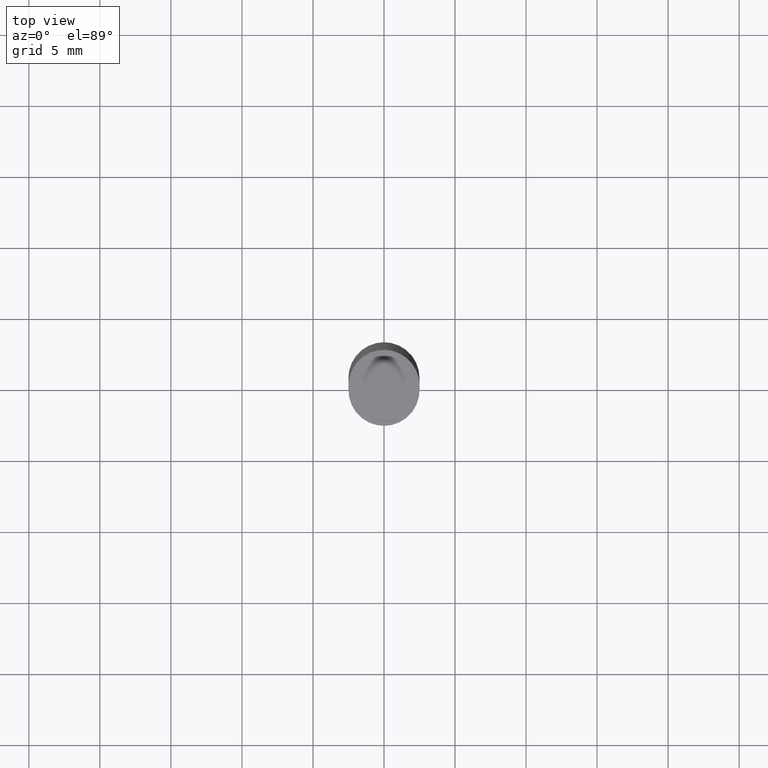
[diagram: clean part render]
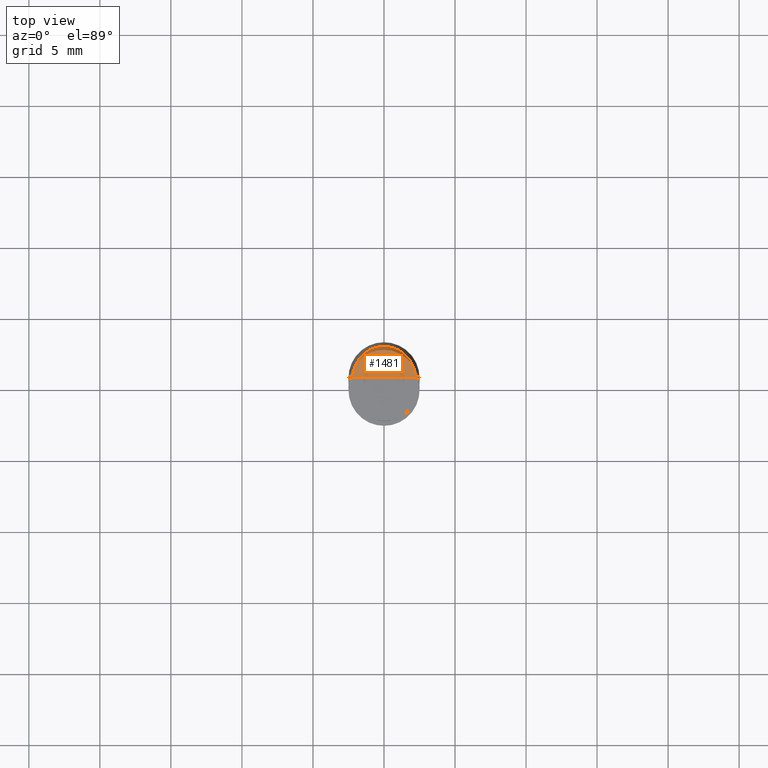
[diagram: same view with one face highlighted and labeled with its STEP entity id]
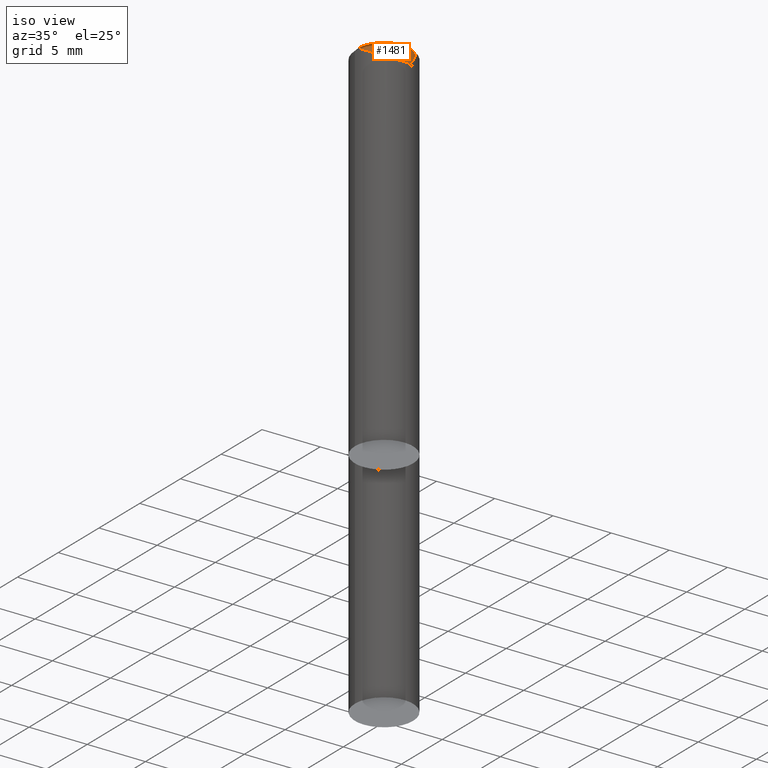
[diagram: same view with one face highlighted and labeled with its STEP entity id]
A machine part, top view. The second image highlights one B-rep face of the part: STEP entity #1481.
A second angle (iso view) of the same face is appended — the face is thin or edge-on in the first view.
In plain terms, the highlighted face is a freeform B-spline surface patch.
Its self-contained STEP definition (entity closure, byte-faithful):
#1283=CARTESIAN_POINT('',(2.2,0.0,31.0));
#1284=CARTESIAN_POINT('',(2.2,2.2,31.0));
#1285=CARTESIAN_POINT('',(0.0,2.2,31.0));
#1286=CARTESIAN_POINT('',(-2.2,2.2,31.0));
#1287=CARTESIAN_POINT('',(-2.2,0.0,31.0));
#1288=CARTESIAN_POINT('',(0.0,0.0,31.0));
#1466=(
BOUNDED_SURFACE()
B_SPLINE_SURFACE(1,2,(
(#1283,#1284,#1285,#1286,#1287),
(#1288,#1288,#1288,#1288,#1288)
), .UNSPECIFIED.,.F.,.F.,.F.)
B_SPLINE_SURFACE_WITH_KNOTS((2,2),(3,2,3),(
0.0,1.0),(
0.0,0.5,1.0), .UNSPECIFIED.)
GEOMETRIC_REPRESENTATION_ITEM()
RATIONAL_B_SPLINE_SURFACE(((1.0,0.707106781187,1.0,0.707106781187,1.0),
(1.0,0.707106781187,1.0,0.707106781187,1.0)
))
REPRESENTATION_ITEM('')
SURFACE()
);
#1467=(
BOUNDED_CURVE()
B_SPLINE_CURVE(2,(#1287,#1286,#1285,#1284,#1283),.UNSPECIFIED.,.F.,.F.)
B_SPLINE_CURVE_WITH_KNOTS((3,2,3),
(0.0,0.5,1.0),.UNSPECIFIED.)
CURVE()
GEOMETRIC_REPRESENTATION_ITEM()
RATIONAL_B_SPLINE_CURVE((1.0,0.707106781187,1.0,0.707106781187,1.0))
REPRESENTATION_ITEM('')
);
#1468=(
BOUNDED_CURVE()
B_SPLINE_CURVE(1,(#1283,#1288),.UNSPECIFIED.,.F.,.F.)
B_SPLINE_CURVE_WITH_KNOTS((2,2),
(0.0,1.0),.UNSPECIFIED.)
CURVE()
GEOMETRIC_REPRESENTATION_ITEM()
RATIONAL_B_SPLINE_CURVE((1.0,1.0))
REPRESENTATION_ITEM('')
);
#1469=(
BOUNDED_CURVE()
B_SPLINE_CURVE(1,(#1288,#1287),.UNSPECIFIED.,.F.,.F.)
B_SPLINE_CURVE_WITH_KNOTS((2,2),
(0.0,1.0),.UNSPECIFIED.)
CURVE()
GEOMETRIC_REPRESENTATION_ITEM()
RATIONAL_B_SPLINE_CURVE((1.0,1.0))
REPRESENTATION_ITEM('')
);
#1470=VERTEX_POINT('',#1283);
#1471=VERTEX_POINT('',#1287);
#1472=VERTEX_POINT('',#1288);
#1473=EDGE_CURVE('',#1471,#1470,#1467,.T.);
#1474=EDGE_CURVE('',#1470,#1472,#1468,.T.);
#1475=EDGE_CURVE('',#1472,#1471,#1469,.T.);
#1476=ORIENTED_EDGE('',*,*,#1473,.T.);
#1477=ORIENTED_EDGE('',*,*,#1474,.T.);
#1478=ORIENTED_EDGE('',*,*,#1475,.T.);
#1479=EDGE_LOOP('',(#1476,#1477,#1478));
#1480=FACE_OUTER_BOUND('',#1479,.T.);
#1481=ADVANCED_FACE('',(#1480),#1466,.T.);